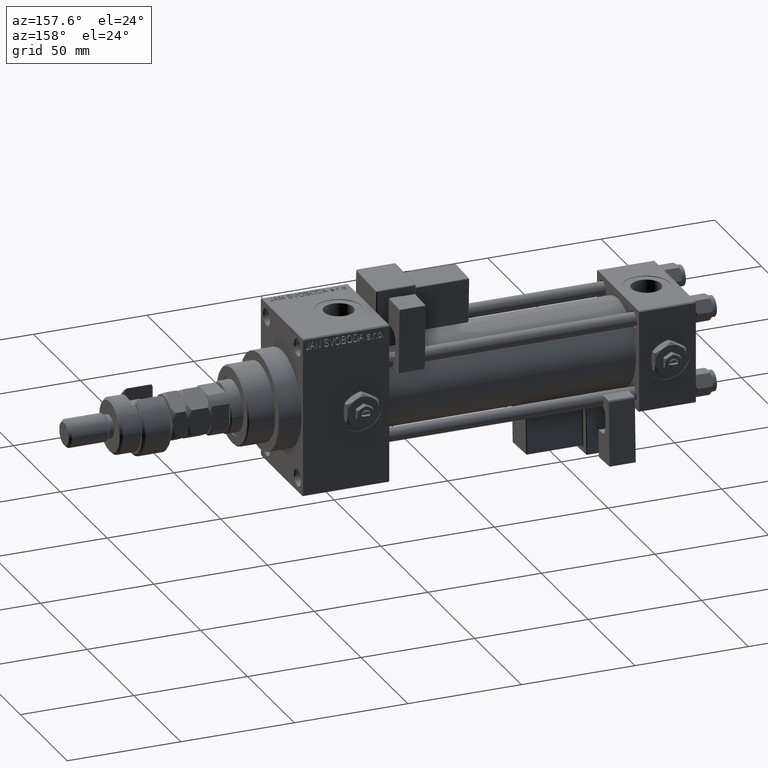
[diagram: clean part render]
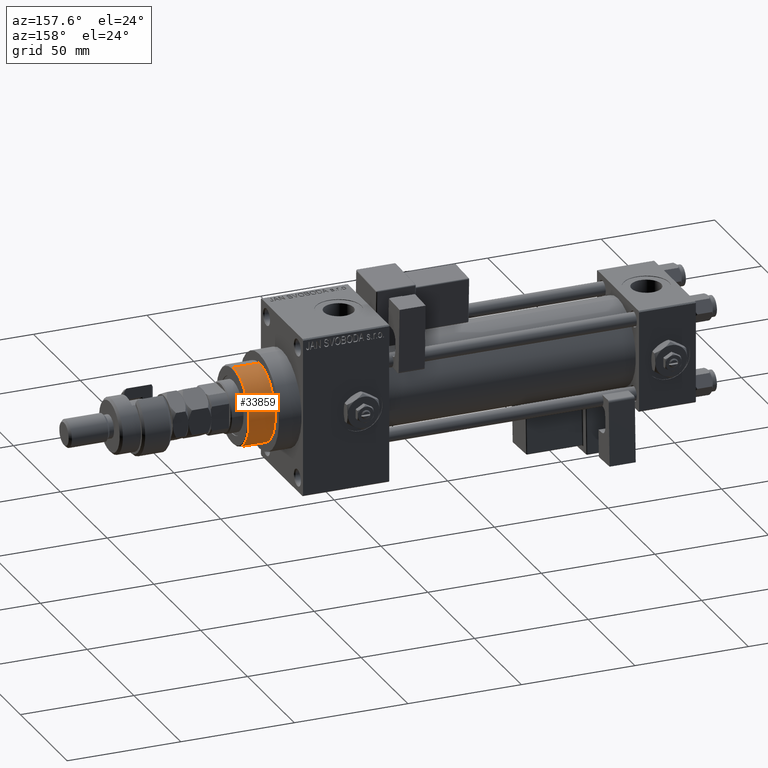
[diagram: same view with one face highlighted and labeled with its STEP entity id]
A machine part, auxiliary view. The second image highlights one B-rep face of the part: STEP entity #33859.
In plain terms, the highlighted cylindrical surface (partial cylindrical patch) has radius 17 mm, axis along (-1, 0, 0).
Its self-contained STEP definition (entity closure, byte-faithful):
#400 = DIRECTION ( 'NONE',  ( -0.000000000000000000, -0.000000000000000000, -1.000000000000000000 ) ) ;
#629 = CARTESIAN_POINT ( 'NONE',  ( 0.000000000000000000, 0.000000000000000000, 55.26000000000000512 ) ) ;
#1979 = DIRECTION ( 'NONE',  ( -0.000000000000000000, -0.000000000000000000, -1.000000000000000000 ) ) ;
#2533 = CARTESIAN_POINT ( 'NONE',  ( -17.00000000000000000, 0.000000000000000000, 43.25999999999999801 ) ) ;
#4520 = EDGE_CURVE ( 'NONE', #19436, #34132, #42881, .T. ) ;
#6451 = CARTESIAN_POINT ( 'NONE',  ( 17.00000000000000000, 2.081899558550500280E-15, 43.25999999999999801 ) ) ;
#10734 = CARTESIAN_POINT ( 'NONE',  ( -17.00000000000000000, 0.000000000000000000, 55.26000000000000512 ) ) ;
#10768 = DIRECTION ( 'NONE',  ( 0.000000000000000000, 0.000000000000000000, 1.000000000000000000 ) ) ;
#12101 = EDGE_CURVE ( 'NONE', #34132, #47583, #48277, .T. ) ;
#15352 = CARTESIAN_POINT ( 'NONE',  ( 17.00000000000000000, 2.081899558550500280E-15, 54.76000000000001222 ) ) ;
#16843 = ORIENTED_EDGE ( 'NONE', *, *, #31488, .T. ) ;
#18846 = VERTEX_POINT ( 'NONE', #6451 ) ;
#19436 = VERTEX_POINT ( 'NONE', #15352 ) ;
#20945 = CARTESIAN_POINT ( 'NONE',  ( -17.00000000000000000, 0.000000000000000000, 54.76000000000001222 ) ) ;
#21462 = FACE_OUTER_BOUND ( 'NONE', #33769, .T. ) ;
#21948 = CIRCLE ( 'NONE', #27161, 17.00000000000000000 ) ;
#22037 = LINE ( 'NONE', #46717, #24857 ) ;
#23138 = CARTESIAN_POINT ( 'NONE',  ( 0.000000000000000000, 0.000000000000000000, 54.76000000000001222 ) ) ;
#24857 = VECTOR ( 'NONE', #400, 1000.000000000000000 ) ;
#27161 = AXIS2_PLACEMENT_3D ( 'NONE', #48834, #10768, #27995 ) ;
#27995 = DIRECTION ( 'NONE',  ( 1.000000000000000000, 0.000000000000000000, 0.000000000000000000 ) ) ;
#29521 = ORIENTED_EDGE ( 'NONE', *, *, #12101, .T. ) ;
#30238 = ORIENTED_EDGE ( 'NONE', *, *, #4520, .T. ) ;
#31488 = EDGE_CURVE ( 'NONE', #47583, #18846, #21948, .T. ) ;
#33769 = EDGE_LOOP ( 'NONE', ( #37256, #30238, #29521, #16843 ) ) ;
#33859 = ADVANCED_FACE ( 'NONE', ( #21462 ), #50236, .T. ) ;
#34132 = VERTEX_POINT ( 'NONE', #20945 ) ;
#37256 = ORIENTED_EDGE ( 'NONE', *, *, #47394, .F. ) ;
#38727 = DIRECTION ( 'NONE',  ( -0.000000000000000000, -0.000000000000000000, -1.000000000000000000 ) ) ;
#42562 = DIRECTION ( 'NONE',  ( -1.000000000000000000, 0.000000000000000000, 0.000000000000000000 ) ) ;
#42881 = CIRCLE ( 'NONE', #49860, 17.00000000000000000 ) ;
#43457 = DIRECTION ( 'NONE',  ( 0.000000000000000000, 0.000000000000000000, -1.000000000000000000 ) ) ;
#44767 = AXIS2_PLACEMENT_3D ( 'NONE', #629, #38727, #42562 ) ;
#46717 = CARTESIAN_POINT ( 'NONE',  ( 17.00000000000000000, 2.081899558550500280E-15, 55.26000000000000512 ) ) ;
#47394 = EDGE_CURVE ( 'NONE', #19436, #18846, #22037, .T. ) ;
#47583 = VERTEX_POINT ( 'NONE', #2533 ) ;
#47830 = DIRECTION ( 'NONE',  ( 1.000000000000000000, 0.000000000000000000, 0.000000000000000000 ) ) ;
#48277 = LINE ( 'NONE', #10734, #52784 ) ;
#48834 = CARTESIAN_POINT ( 'NONE',  ( 0.000000000000000000, 0.000000000000000000, 43.25999999999999801 ) ) ;
#49860 = AXIS2_PLACEMENT_3D ( 'NONE', #23138, #43457, #47830 ) ;
#50236 = CYLINDRICAL_SURFACE ( 'NONE', #44767, 17.00000000000000000 ) ;
#52784 = VECTOR ( 'NONE', #1979, 1000.000000000000000 ) ;